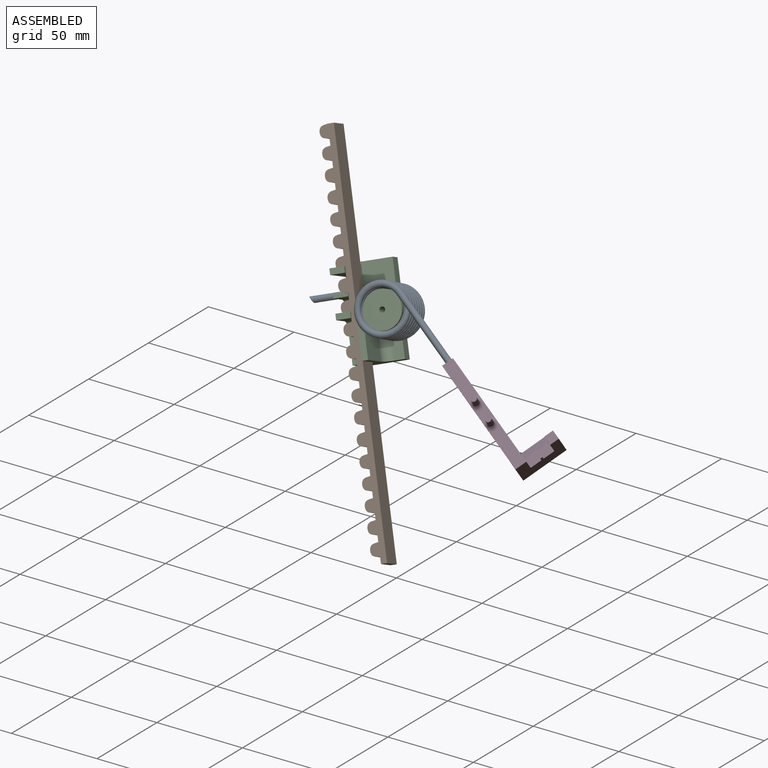
[diagram: assembled view]
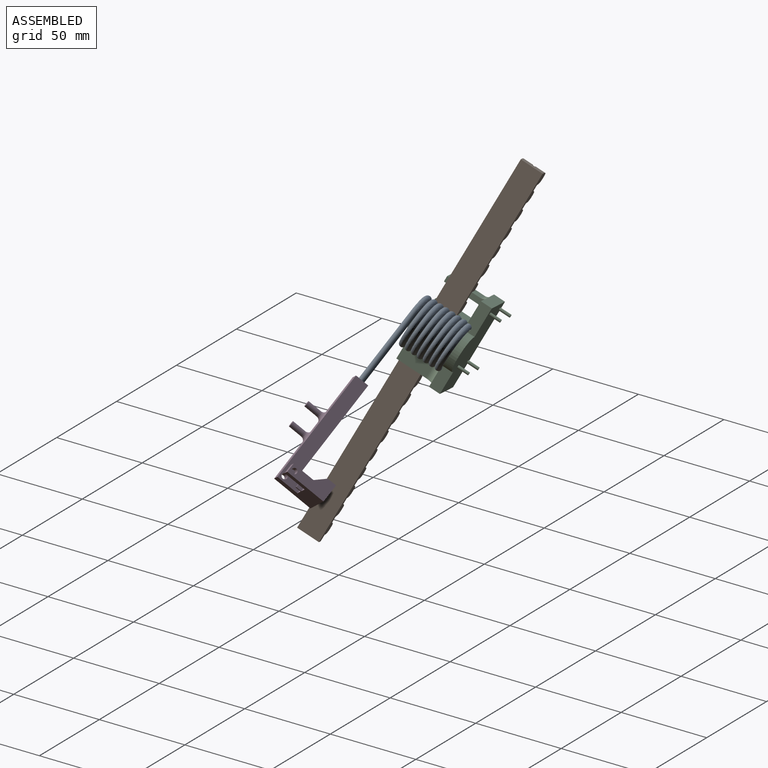
[diagram: assembled view, second angle]
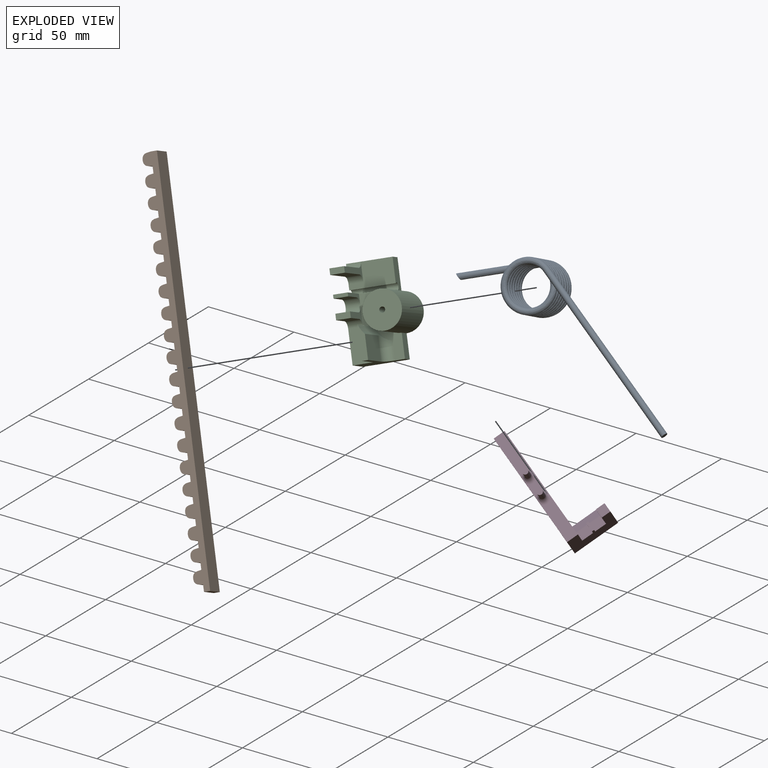
[diagram: exploded view]
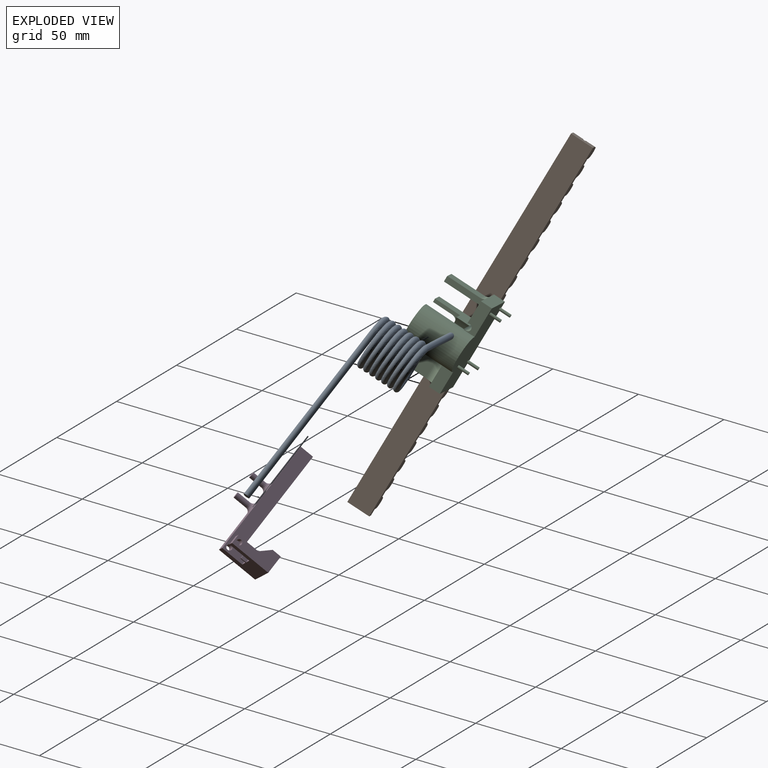
[diagram: exploded view, second angle]
ASSEMBLY  parts=4 mates=4
PART A: 5 faces, bbox 35.1x136.1x47.2 mm
  f0: bspline ~28.16x27.93mm, area 5906.6mm2, adj f1,f3
  f1: cylinder r=1.71mm len=101.65mm, axis (-0.04,1,0), area 1094.5mm2, adj f0,f2
  f2: plane 3.43x3.43mm, normal (0.04,-1,0), area 9.2mm2, adj f1
  f3: cylinder r=1.71mm len=39.73mm, axis (0.04,-0.5,-0.87), area 462.9mm2, adj f0,f4
  f4: plane 4.4x3.87mm, normal (0,0,1), area 10.7mm2, adj f3
PART B: 86 faces, bbox 213.4x12.7x8 mm
  f0: extruded ~7.11x5.52mm, area 74.3mm2, adj f20,f22,f24,f84
  f1: extruded ~7.11x5.52mm, area 74.3mm2, adj f20,f24,f83
  f2: extruded ~7.11x5.52mm, area 74.3mm2, adj f20,f24,f81
  f3: extruded ~7.11x5.52mm, area 74.3mm2, adj f20,f24,f79
  f4: extruded ~7.11x5.52mm, area 74.3mm2, adj f20,f24,f77
  f5: extruded ~7.11x5.52mm, area 74.3mm2, adj f20,f24,f75
  f6: extruded ~7.11x5.52mm, area 74.3mm2, adj f20,f24,f73
  f7: extruded ~7.11x5.52mm, area 74.3mm2, adj f20,f24,f71
  f8: extruded ~7.11x5.52mm, area 74.3mm2, adj f20,f24,f69
  f9: extruded ~7.11x5.52mm, area 74.3mm2, adj f20,f24,f67
  f10: extruded ~7.11x5.52mm, area 74.3mm2, adj f20,f24,f65
  f11: extruded ~7.11x5.52mm, area 74.3mm2, adj f20,f24,f63
  f12: extruded ~7.11x5.52mm, area 74.3mm2, adj f20,f24,f61
  f13: extruded ~7.11x5.52mm, area 74.3mm2, adj f20,f24,f59
  f14: extruded ~7.11x5.52mm, area 74.3mm2, adj f20,f24,f57
  f15: extruded ~7.11x5.52mm, area 74.3mm2, adj f20,f24,f55
  f16: extruded ~7.11x5.52mm, area 74.3mm2, adj f20,f24,f53
  f17: extruded ~7.11x5.52mm, area 74.3mm2, adj f20,f24,f51
  f18: extruded ~7.11x5.52mm, area 74.3mm2, adj f20,f24,f49
  f19: extruded ~7.11x5.52mm, area 74.3mm2, adj f20,f24,f47
  f20: plane 213.36x12.7mm, normal (0,0,-1), area 1138.1mm2, adj f0,f1,f2,f3,f4,f5,f6,f7
  f21: plane 213.36x12.7mm, normal (0,0,1), area 2709.7mm2, adj f22,f24,f25,f44
  f22: plane 12.7x3.18mm, normal (-1,0,0), area 40.3mm2, adj f0,f20,f21,f23,f24,f25
  f23: extruded ~7.11x5.52mm, area 74.3mm2, adj f20,f22,f25,f85
  f24: plane 213.36x8.04mm, normal (0,-1,0), area 1229.2mm2, adj f0,f1,f2,f3,f4,f5,f6,f7
  f25: plane 213.36x8.04mm, normal (0,1,0), area 1229.2mm2, adj f20,f21,f22,f23,f26,f27,f28,f29
  f26: extruded ~7.11x5.52mm, area 74.3mm2, adj f20,f25,f82
  f27: extruded ~7.11x5.52mm, area 74.3mm2, adj f20,f25,f80
  f28: extruded ~7.11x5.52mm, area 74.3mm2, adj f20,f25,f78
  f29: extruded ~7.11x5.52mm, area 74.3mm2, adj f20,f25,f76
  f30: extruded ~7.11x5.52mm, area 74.3mm2, adj f20,f25,f74
  f31: extruded ~7.11x5.52mm, area 74.3mm2, adj f20,f25,f72
  f32: extruded ~7.11x5.52mm, area 74.3mm2, adj f20,f25,f70
  f33: extruded ~7.11x5.52mm, area 74.3mm2, adj f20,f25,f68
  f34: extruded ~7.11x5.52mm, area 74.3mm2, adj f20,f25,f66
  f35: extruded ~7.11x5.52mm, area 74.3mm2, adj f20,f25,f64
  f36: extruded ~7.11x5.52mm, area 74.3mm2, adj f20,f25,f62
  f37: extruded ~7.11x5.52mm, area 74.3mm2, adj f20,f25,f60
  f38: extruded ~7.11x5.52mm, area 74.3mm2, adj f20,f25,f58
  f39: extruded ~7.11x5.52mm, area 74.3mm2, adj f20,f25,f56
  f40: extruded ~7.11x5.52mm, area 74.3mm2, adj f20,f25,f54
  f41: extruded ~7.11x5.52mm, area 74.3mm2, adj f20,f25,f52
  f42: extruded ~7.11x5.52mm, area 74.3mm2, adj f20,f25,f50
  f43: extruded ~7.11x5.52mm, area 74.3mm2, adj f20,f25,f48
  f44: plane 12.7x3.18mm, normal (1,0,0), area 40.3mm2, adj f20,f21,f24,f25
  f45: extruded ~7.11x5.52mm, area 74.3mm2, adj f20,f25,f46
  f46: plane 7.11x4.86mm, normal (0,-1,0), area 27.6mm2, adj f20,f45
  f47: plane 7.11x4.86mm, normal (0,1,0), area 27.6mm2, adj f19,f20
  f48: plane 7.11x4.86mm, normal (0,-1,0), area 27.6mm2, adj f20,f43
  f49: plane 7.11x4.86mm, normal (0,1,0), area 27.6mm2, adj f18,f20
  f50: plane 7.11x4.86mm, normal (0,-1,0), area 27.6mm2, adj f20,f42
  f51: plane 7.11x4.86mm, normal (0,1,0), area 27.6mm2, adj f17,f20
  f52: plane 7.11x4.86mm, normal (0,-1,0), area 27.6mm2, adj f20,f41
  f53: plane 7.11x4.86mm, normal (0,1,0), area 27.6mm2, adj f16,f20
  f54: plane 7.11x4.86mm, normal (0,-1,0), area 27.6mm2, adj f20,f40
  f55: plane 7.11x4.86mm, normal (0,1,0), area 27.6mm2, adj f15,f20
  f56: plane 7.11x4.86mm, normal (0,-1,0), area 27.6mm2, adj f20,f39
  f57: plane 7.11x4.86mm, normal (0,1,0), area 27.6mm2, adj f14,f20
  f58: plane 7.11x4.86mm, normal (0,-1,0), area 27.6mm2, adj f20,f38
  f59: plane 7.11x4.86mm, normal (0,1,0), area 27.6mm2, adj f13,f20
  f60: plane 7.11x4.86mm, normal (0,-1,0), area 27.6mm2, adj f20,f37
  f61: plane 7.11x4.86mm, normal (0,1,0), area 27.6mm2, adj f12,f20
  f62: plane 7.11x4.86mm, normal (0,-1,0), area 27.6mm2, adj f20,f36
  f63: plane 7.11x4.86mm, normal (0,1,0), area 27.6mm2, adj f11,f20
  f64: plane 7.11x4.86mm, normal (0,-1,0), area 27.6mm2, adj f20,f35
  f65: plane 7.11x4.86mm, normal (0,1,0), area 27.6mm2, adj f10,f20
  f66: plane 7.11x4.86mm, normal (0,-1,0), area 27.6mm2, adj f20,f34
  f67: plane 7.11x4.86mm, normal (0,1,0), area 27.6mm2, adj f9,f20
  f68: plane 7.11x4.86mm, normal (0,-1,0), area 27.6mm2, adj f20,f33
  f69: plane 7.11x4.86mm, normal (0,1,0), area 27.6mm2, adj f8,f20
  f70: plane 7.11x4.86mm, normal (0,-1,0), area 27.6mm2, adj f20,f32
  f71: plane 7.11x4.86mm, normal (0,1,0), area 27.6mm2, adj f7,f20
  f72: plane 7.11x4.86mm, normal (0,-1,0), area 27.6mm2, adj f20,f31
  f73: plane 7.11x4.86mm, normal (0,1,0), area 27.6mm2, adj f6,f20
  f74: plane 7.11x4.86mm, normal (0,-1,0), area 27.6mm2, adj f20,f30
  f75: plane 7.11x4.86mm, normal (0,1,0), area 27.6mm2, adj f5,f20
  f76: plane 7.11x4.86mm, normal (0,-1,0), area 27.6mm2, adj f20,f29
  f77: plane 7.11x4.86mm, normal (0,1,0), area 27.6mm2, adj f4,f20
  f78: plane 7.11x4.86mm, normal (0,-1,0), area 27.6mm2, adj f20,f28
  f79: plane 7.11x4.86mm, normal (0,1,0), area 27.6mm2, adj f3,f20
  f80: plane 7.11x4.86mm, normal (0,-1,0), area 27.6mm2, adj f20,f27
  f81: plane 7.11x4.86mm, normal (0,1,0), area 27.6mm2, adj f2,f20
  f82: plane 7.11x4.86mm, normal (0,-1,0), area 27.6mm2, adj f20,f26
  f83: plane 7.11x4.86mm, normal (0,1,0), area 27.6mm2, adj f1,f20
  f84: plane 7.11x4.86mm, normal (0,1,0), area 27.6mm2, adj f0,f20
  f85: plane 7.11x4.86mm, normal (0,-1,0), area 27.6mm2, adj f20,f23
PART C: 44 faces, bbox 49.5x35.6x34.3 mm
  f0: plane 33.66x14.48mm, normal (0,-1,0), area 240mm2, adj f6,f9,f14,f15,f24,f27,f31,f38
  f1: plane 33.66x14.48mm, normal (0,-1,0), area 188.3mm2, adj f2,f3,f13,f14,f29,f31,f41
  f2: plane 16.51x6.35mm, normal (0,0,1), area 95.1mm2, adj f1,f3,f5,f7,f12,f13
  f3: cylinder r=10.16mm len=28.58mm, axis (0,1,0), area 1621.5mm2, adj f1,f2,f4,f5,f29
  f4: plane 20.32x20.32mm, normal (0,-1,0), area 317mm2, adj f3,f42
  f5: plane 49.53x34.29mm, normal (0,1,0), area 1348.7mm2, adj f2,f3,f6,f12,f16,f18,f20,f22
  f6: plane 49.53x29.21mm, normal (0,0,-1), area 721.5mm2, adj f0,f5,f7,f8,f10,f11,f12,f13
  f7: plane 24.13x12.83mm, normal (0,-1,0), area 234mm2, adj f2,f6,f12,f13,f33,f37
  f8: plane 11.05x7.62mm, normal (1,0,0), area 84.2mm2, adj f6,f9,f11,f40
  f9: plane 14.61x10.29mm, normal (0,0,1), area 51.8mm2, adj f0,f8,f10,f11,f39,f40
  f10: plane 11.05x7.62mm, normal (-1,0,0), area 84.2mm2, adj f6,f9,f11,f39
  f11: plane 7.62x3.18mm, normal (0,-1,0), area 24.2mm2, adj f6,f8,f9,f10
  f12: plane 24.13x6.35mm, normal (-1,0,0), area 153.2mm2, adj f2,f5,f6,f7,f36
  f13: cylinder r=1.91mm len=24.13mm, axis (0,0,1), area 203.6mm2, adj f1,f2,f6,f7,f15
  f14: cylinder r=14.48mm len=24.29mm, axis (0,1,0), area 271.8mm2, adj f0,f1,f15,f24,f25,f30,f41
  f15: plane 22.23x14.48mm, normal (-1,0,0), area 221.6mm2, adj f0,f6,f13,f14,f27,f28
  f16: cylinder r=0.83mm len=6.35mm, axis (0,-1,0), area 32.9mm2, adj f5,f17
  f17: plane 1.65x1.65mm, normal (0,1,0), area 2.1mm2, adj f16
  f18: cylinder r=0.83mm len=6.35mm, axis (0,-1,0), area 32.9mm2, adj f5,f19
  f19: plane 1.65x1.65mm, normal (0,1,0), area 2.1mm2, adj f18
  f20: cylinder r=0.83mm len=6.35mm, axis (0,-1,0), area 32.9mm2, adj f5,f21
  f21: plane 1.65x1.65mm, normal (0,1,0), area 2.1mm2, adj f20
  f22: cylinder r=0.83mm len=6.35mm, axis (0,-1,0), area 32.9mm2, adj f5,f23
  f23: plane 1.65x1.65mm, normal (0,1,0), area 2.1mm2, adj f22
  f24: plane 17.6x14.61mm, normal (0,0,-1), area 257.1mm2, adj f0,f14,f25,f31
  f25: plane 17.6x3.18mm, normal (0,-1,0), area 46.9mm2, adj f14,f24,f30,f31
  f26: plane 11.05x7.62mm, normal (1,0,0), area 84.2mm2, adj f6,f27,f28,f38
  f27: plane 14.61x5.46mm, normal (0,0,1), area 30.5mm2, adj f0,f15,f26,f28,f38
  f28: plane 7.62x1.91mm, normal (0,-1,0), area 14.5mm2, adj f6,f15,f26,f27
  f29: plane 12.7x6.35mm, normal (0,0,1), area 80.6mm2, adj f1,f3,f5,f31
  f30: plane 17.15x12.7mm, normal (0,0,1), area 217.7mm2, adj f14,f25,f31,f41
  f31: plane 28.58x24.13mm, normal (1,0,0), area 310.4mm2, adj f0,f1,f5,f6,f24,f25,f29,f30
  f32: plane 19.32x7.62mm, normal (-1,0,0), area 147.3mm2, adj f6,f33,f35,f36
  f33: plane 22.86x9.91mm, normal (0,0,1), area 77.9mm2, adj f7,f32,f34,f35,f36,f37
  f34: plane 19.3x7.62mm, normal (1,0,0), area 147.1mm2, adj f6,f33,f35,f37
  f35: plane 7.62x3.18mm, normal (0,-1,0), area 24.2mm2, adj f6,f32,f33,f34
  f36: cylinder r=3.56mm len=7.62mm, axis (0,0,-1), area 39.7mm2, adj f6,f12,f32,f33
  f37: cylinder r=3.56mm len=7.62mm, axis (0,0,1), area 42.6mm2, adj f6,f7,f33,f34
  f38: cylinder r=3.56mm len=7.62mm, axis (0,0,-1), area 42.6mm2, adj f0,f6,f26,f27
  f39: cylinder r=3.56mm len=7.62mm, axis (0,0,1), area 42.6mm2, adj f0,f6,f9,f10
  f40: cylinder r=3.56mm len=7.62mm, axis (0,0,-1), area 42.6mm2, adj f0,f6,f8,f9
  f41: cylinder r=5.08mm len=12.7mm, axis (1,0,0), area 89.9mm2, adj f1,f14,f30,f31
  f42: cylinder r=1.52mm len=12.7mm, axis (0,-1,0), area 121.6mm2, adj f4,f43
  f43: plane 3.05x3.05mm, normal (0,-1,0), area 7.3mm2, adj f42
PART D: 38 faces, bbox 63.7x32.9x27.3 mm
  f0: plane 7.23x6.35mm, normal (0,-1,0), area 32.8mm2, adj f2,f8,f31,f36
  f1: plane 22.74x6.35mm, normal (0,-1,0), area 137.9mm2, adj f2,f5,f8,f35
  f2: plane 63.68x12.62mm, normal (0,0,-1), area 501.1mm2, adj f0,f1,f3,f5,f7,f9,f10,f22
  f3: plane 6.35x5.08mm, normal (0,-1,0), area 32.3mm2, adj f2,f5,f13,f19
  f4: plane 6.35x5.08mm, normal (0,-1,0), area 32.3mm2, adj f5,f13,f14,f18
  f5: plane 25.4x22.61mm, normal (-1,0,0), area 404.4mm2, adj f1,f2,f3,f4,f8,f14,f16,f17
  f6: plane 25.4x5.08mm, normal (1,0,0), area 129mm2, adj f8,f13,f16,f27
  f7: plane 58.42x6.35mm, normal (0,1,0), area 371mm2, adj f2,f8,f9,f22
  f8: plane 63.68x22.78mm, normal (0,0,1), area 591.4mm2, adj f0,f1,f5,f6,f7,f9,f10,f13
  f9: plane 7.62x6.35mm, normal (1,0,0), area 37.7mm2, adj f2,f7,f8,f10,f11
  f10: plane 22.9x6.35mm, normal (0,-1,0), area 138.8mm2, adj f2,f8,f9,f32
  f11: cylinder r=1.84mm len=58.42mm, axis (1,0,0), area 675.9mm2, adj f9,f12
  f12: plane 3.68x3.68mm, normal (1,0,0), area 10.7mm2, adj f11
  f13: plane 25.4x5.08mm, normal (0.71,-0.71,0), area 182.5mm2, adj f3,f4,f6,f8,f15,f16,f20,f22
  f14: plane 12.45x5.08mm, normal (0,0,1), area 55.9mm2, adj f4,f5,f15,f17,f28
  f15: plane 12.45x5.08mm, normal (1,0,0), area 63.2mm2, adj f13,f14,f16,f17
  f16: plane 22.61x10.16mm, normal (0,0,-1), area 146.3mm2, adj f5,f6,f13,f15,f17,f27,f28
  f17: plane 5.08x5.08mm, normal (0,-1,0), area 25.8mm2, adj f5,f14,f15,f16
  f18: plane 5.08x3.18mm, normal (0,0,-1), area 16.1mm2, adj f4,f5,f20,f21
  f19: plane 5.08x3.18mm, normal (0,0,1), area 16.1mm2, adj f3,f5,f20,f21
  f20: plane 3.18x1.27mm, normal (1,0,0), area 4mm2, adj f13,f18,f19,f21
  f21: plane 5.08x1.27mm, normal (0,-1,0), area 6.5mm2, adj f5,f18,f19,f20
  f22: plane 6.35x4.83mm, normal (1,0,0), area 30.6mm2, adj f2,f7,f8,f13
  f23: cylinder r=1.6mm len=7.62mm, axis (0,1,0), area 76.6mm2, adj f24,f34,f35,f36,f37
  f24: plane 3.2x3.2mm, normal (0,-1,0), area 8mm2, adj f23
  f25: cylinder r=1.6mm len=7.62mm, axis (0,1,0), area 76.6mm2, adj f26,f30,f31,f32,f33
  f26: plane 3.2x3.2mm, normal (0,-1,0), area 8mm2, adj f25
  f27: plane 25.4x10.16mm, normal (0,1,0), area 258.1mm2, adj f5,f6,f8,f16
  f28: cylinder r=1.52mm len=5.08mm, axis (0,0,-1), area 48.6mm2, adj f14,f16
  f29: cylinder r=1.52mm len=6.35mm, axis (0,0,-1), area 60.8mm2, adj f2,f8
  f30: bspline ~6.05x2.82mm, area 10.5mm2, adj f8,f25,f31,f32
  f31: torus R=4.14mm, axis (0,-1,0), area 17.6mm2, adj f0,f25,f30,f33
  f32: torus R=4.14mm, axis (0,-1,0), area 17.6mm2, adj f10,f25,f30,f33
  f33: bspline ~6.05x2.82mm, area 10.5mm2, adj f2,f25,f31,f32
  f34: bspline ~6.05x2.82mm, area 10.5mm2, adj f8,f23,f35,f36
  f35: torus R=4.14mm, axis (0,-1,0), area 17.6mm2, adj f1,f23,f34,f37
  f36: torus R=4.14mm, axis (0,-1,0), area 17.6mm2, adj f0,f23,f34,f37
  f37: bspline ~6.05x2.82mm, area 10.5mm2, adj f2,f23,f35,f36
PLACE A rot(axis=(0.72,-0.69,-0.05),131.1deg) t=(47.16,-8.97,57.74)mm
PLACE B rot(axis=(-0.39,0.92,-0.09),73.9deg) t=(-6.09,30.87,125.56)mm
PLACE C rot(axis=(-0.39,0.92,-0.09),73.9deg) t=(42.16,17.57,44.48)mm
PLACE D rot(axis=(0.04,-0.92,0.39),142.8deg) t=(135.62,-20.7,-0.91)mm
MATE cylindrical A.f1 <-> D.f11  axis (-0.79,0.17,0.59) through (134.92,-20.09,6.3)mm
MATE parallel B.f21 <-> C.f6  axis (0.91,0.31,0.28) through (39.03,-10.32,37.82)mm
MATE fastened C.f24 <-> B.f21  axis (-0.91,-0.31,-0.28) through (39.03,-10.32,37.82)mm
MATE cylindrical A.f3 <-> C.f13  axis (0.91,0.31,0.28) through (17.21,9.86,50.71)mm
